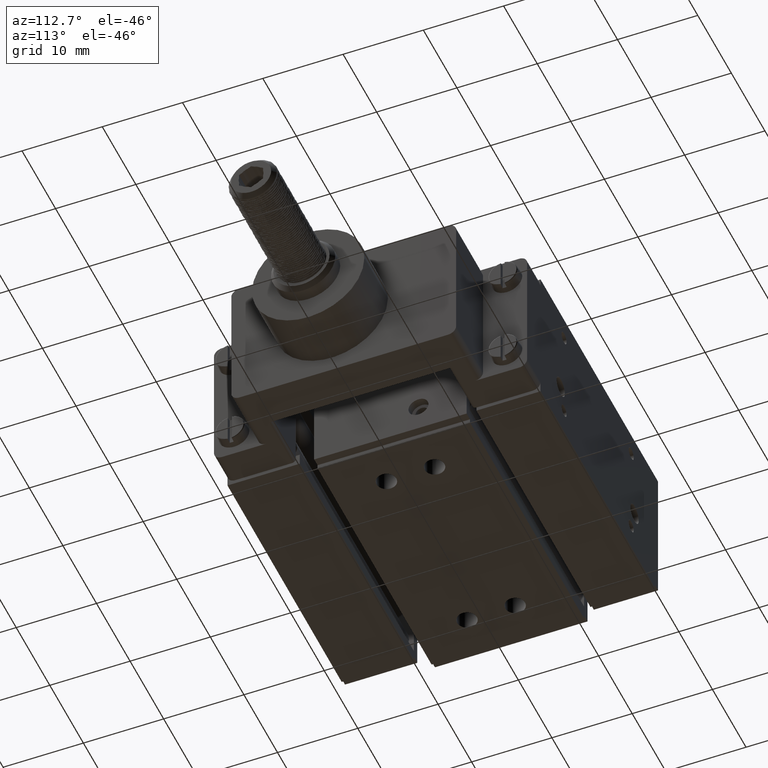
[diagram: clean part render]
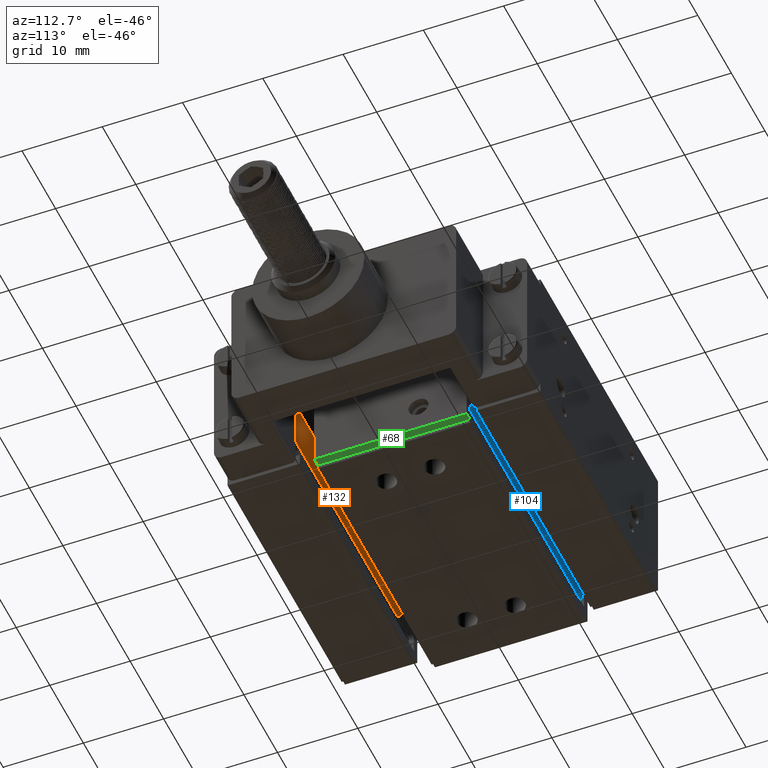
[diagram: same view with three faces highlighted in distinct colors, each labeled with its STEP entity id]
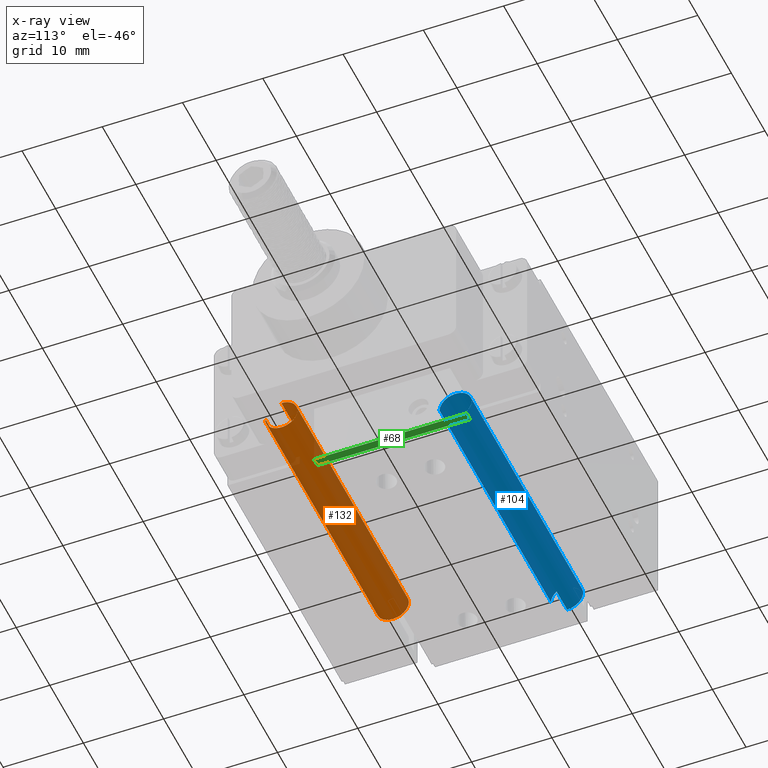
[diagram: x-ray of the same camera — body ghosted, the three highlighted faces saturated]
A machine part, auxiliary view with three faces highlighted in distinct colors.
The next image is the same camera in x-ray (body ghosted, the three faces saturated) — at least one of them is partly hidden behind the body in this view.
Their STEP definitions:

[orange] entity #132 — the highlighted cylindrical surface (edge-blend (fillet) strip) has radius 2 mm, axis along (-1, 0, -0).
#132=ADVANCED_FACE('',(#718),#8131,.T.);
#718=FACE_OUTER_BOUND('',#1243,.T.);
#1243=EDGE_LOOP('',(#2294,#2295,#2296,#2297,#2298,#2299));
#2294=ORIENTED_EDGE('',*,*,#4795,.T.);
#2295=ORIENTED_EDGE('',*,*,#5651,.T.);
#2296=ORIENTED_EDGE('',*,*,#4796,.T.);
#2297=ORIENTED_EDGE('',*,*,#4797,.T.);
#2298=ORIENTED_EDGE('',*,*,#4798,.F.);
#2299=ORIENTED_EDGE('',*,*,#5652,.T.);
#4795=EDGE_CURVE('',#7494,#7495,#6523,.T.);
#4796=EDGE_CURVE('',#7496,#7497,#6024,.T.);
#4797=EDGE_CURVE('',#7497,#7498,#6524,.T.);
#4798=EDGE_CURVE('',#7499,#7498,#6025,.T.);
#5651=EDGE_CURVE('',#7495,#7496,#6181,.T.);
#5652=EDGE_CURVE('',#7499,#7494,#6182,.T.);
#6024=(
BOUNDED_CURVE()
B_SPLINE_CURVE(2,(#28959,#28960,#28961,#28962,#28963),.UNSPECIFIED.,.F.,
 .F.)
B_SPLINE_CURVE_WITH_KNOTS((3,2,3),(0.,1.63639360838428,3.27278721676857),
 .UNSPECIFIED.)
CURVE()
GEOMETRIC_REPRESENTATION_ITEM()
RATIONAL_B_SPLINE_CURVE((1.,0.91747983534851,1.,0.91747983534851,1.))
REPRESENTATION_ITEM('')
);
#6025=(
BOUNDED_CURVE()
B_SPLINE_CURVE(2,(#28966,#28967,#28968,#28969,#28970),.UNSPECIFIED.,.F.,
 .F.)
B_SPLINE_CURVE_WITH_KNOTS((3,2,3),(0.,1.39093456712669,2.78186913425338),
 .UNSPECIFIED.)
CURVE()
GEOMETRIC_REPRESENTATION_ITEM()
RATIONAL_B_SPLINE_CURVE((1.,0.917479835348516,1.,0.917479835348516,1.))
REPRESENTATION_ITEM('')
);
#6181=(
BOUNDED_CURVE()
B_SPLINE_CURVE(2,(#42922,#42923,#42924,#42925,#42926,#42927,#42928),
 .UNSPECIFIED.,.F.,.F.)
B_SPLINE_CURVE_WITH_KNOTS((3,2,2,3),(0.,0.131194563178753,3.20718993517925,
6.28318530717976),.UNSPECIFIED.)
CURVE()
GEOMETRIC_REPRESENTATION_ITEM()
RATIONAL_B_SPLINE_CURVE((1.,0.999462172797637,1.,0.71860725037514,1.,0.71860725037514,
1.))
REPRESENTATION_ITEM('')
);
#6182=(
BOUNDED_CURVE()
B_SPLINE_CURVE(2,(#42929,#42930,#42931,#42932,#42933,#42934,#42935),
 .UNSPECIFIED.,.F.,.F.)
B_SPLINE_CURVE_WITH_KNOTS((3,2,2,3),(-10.6814150222053,-8.06681895600496,
-5.45222288980462,-5.32102832662584),.UNSPECIFIED.)
CURVE()
GEOMETRIC_REPRESENTATION_ITEM()
RATIONAL_B_SPLINE_CURVE((1.,0.718607250375119,1.,0.718607250375119,1.,0.999462172797637,
1.))
REPRESENTATION_ITEM('')
);
#6523=B_SPLINE_CURVE_WITH_KNOTS('',1,(#28957,#28958),.UNSPECIFIED.,.F.,
 .F.,(2,2),(0.,33.2),.UNSPECIFIED.);
#6524=B_SPLINE_CURVE_WITH_KNOTS('',1,(#28964,#28965),.UNSPECIFIED.,.F.,
 .F.,(2,2),(0.,33.2),.UNSPECIFIED.);
#7494=VERTEX_POINT('',#28360);
#7495=VERTEX_POINT('',#28361);
#7496=VERTEX_POINT('',#28362);
#7497=VERTEX_POINT('',#28363);
#7498=VERTEX_POINT('',#28364);
#7499=VERTEX_POINT('',#28365);
#8131=CYLINDRICAL_SURFACE('',#8687,2.00000000000006);
#8687=AXIS2_PLACEMENT_3D('',#12666,#9088,$);
#9088=DIRECTION('',(-1.,1.0594127514041E-15,-6.1903707387531E-15));
#12666=CARTESIAN_POINT('',(-17.0999991892432,-12.9999999944682,10.0000455395507));
#28360=CARTESIAN_POINT('',(-0.499999189243152,-14.9956985338815,10.1311460345298));
#28361=CARTESIAN_POINT('',(-33.6999991892432,-14.9956985338815,10.1311460345296));
#28362=CARTESIAN_POINT('',(-33.6999991892432,-11.0043014550549,9.86894504457162));
#28363=CARTESIAN_POINT('',(-33.6999991892432,-12.9999999944682,12.0000455395506));
#28364=CARTESIAN_POINT('',(-0.499999189243152,-12.9999999944683,12.0000455395507));
#28365=CARTESIAN_POINT('',(-0.499999189243145,-11.004301455055,9.8689450445718));
#28957=CARTESIAN_POINT('',(-0.499999189243152,-14.9956985338815,10.1311460345298));
#28958=CARTESIAN_POINT('',(-33.6999991892432,-14.9956985338815,10.1311460345296));
#28959=CARTESIAN_POINT('',(-33.6999991892432,-11.0043014550549,9.86894504457162));
#28960=CARTESIAN_POINT('',(-33.6999991892432,-10.9474615623952,10.7341995257196));
#28961=CARTESIAN_POINT('',(-33.6999991892432,-11.5401710678542,11.3671225326351));
#28962=CARTESIAN_POINT('',(-33.6999991892432,-12.1328805733131,12.0000455395506));
#28963=CARTESIAN_POINT('',(-33.6999991892432,-12.9999999944682,12.0000455395506));
#28964=CARTESIAN_POINT('',(-33.6999991892432,-12.9999999944682,12.0000455395506));
#28965=CARTESIAN_POINT('',(-0.499999189243152,-12.9999999944683,12.0000455395507));
#28966=CARTESIAN_POINT('',(-0.499999189243137,-11.004301455055,9.8689450445718));
#28967=CARTESIAN_POINT('',(-0.499999189243146,-10.9474615623954,10.7341995257198));
#28968=CARTESIAN_POINT('',(-0.499999189243152,-11.5401710678543,11.3671225326352));
#28969=CARTESIAN_POINT('',(-0.499999189243159,-12.1328805733132,12.0000455395507));
#28970=CARTESIAN_POINT('',(-0.499999189243159,-12.9999999944683,12.0000455395507));
#42922=CARTESIAN_POINT('',(-33.6999991892432,-14.9956985338815,10.1311460345296));
#42923=CARTESIAN_POINT('',(-33.6999991892432,-14.9999999944682,10.0656663533762));
#42924=CARTESIAN_POINT('',(-33.6999991892432,-14.9999999944683,10.0000455395506));
#42925=CARTESIAN_POINT('',(-33.6999991892432,-14.9999999944683,8.06459012014385));
#42926=CARTESIAN_POINT('',(-33.6999991892432,-13.0655855156351,8.00112119395534));
#42927=CARTESIAN_POINT('',(-33.6999991892432,-11.1311710368019,7.93765226776683));
#42928=CARTESIAN_POINT('',(-33.6999991892432,-11.0043014550549,9.86894504457161));
#42929=CARTESIAN_POINT('',(-0.499999189243145,-11.004301455055,9.86894504457179));
#42930=CARTESIAN_POINT('',(-0.499999189243131,-11.1311710368019,7.93765226776695));
#42931=CARTESIAN_POINT('',(-0.499999189243138,-13.0655855156351,8.00112119395546));
#42932=CARTESIAN_POINT('',(-0.499999189243144,-14.9999999944684,8.06459012014396));
#42933=CARTESIAN_POINT('',(-0.499999189243159,-14.9999999944683,10.0000455395508));
#42934=CARTESIAN_POINT('',(-0.499999189243153,-14.9999999944682,10.0656663533764));
#42935=CARTESIAN_POINT('',(-0.499999189243152,-14.9956985338815,10.1311460345298));

[blue] entity #104 — the highlighted cylindrical surface (edge-blend (fillet) strip) has radius 2 mm, axis along (-1, 0, 0).
#104=ADVANCED_FACE('',(#690),#8115,.T.);
#690=FACE_OUTER_BOUND('',#1213,.T.);
#1213=EDGE_LOOP('',(#2141,#2142,#2143,#2144,#2145,#2146,#2147,#2148));
#2141=ORIENTED_EDGE('',*,*,#4681,.F.);
#2142=ORIENTED_EDGE('',*,*,#4793,.F.);
#2143=ORIENTED_EDGE('',*,*,#4720,.F.);
#2144=ORIENTED_EDGE('',*,*,#4685,.F.);
#2145=ORIENTED_EDGE('',*,*,#4682,.F.);
#2146=ORIENTED_EDGE('',*,*,#4678,.F.);
#2147=ORIENTED_EDGE('',*,*,#4673,.F.);
#2148=ORIENTED_EDGE('',*,*,#4679,.F.);
#4673=EDGE_CURVE('',#7443,#7444,#5947,.T.);
#4678=EDGE_CURVE('',#7444,#7446,#5952,.T.);
#4679=EDGE_CURVE('',#7445,#7443,#5953,.T.);
#4681=EDGE_CURVE('',#7448,#7445,#6478,.T.);
#4682=EDGE_CURVE('',#7446,#7449,#6479,.T.);
#4685=EDGE_CURVE('',#7449,#7450,#5957,.T.);
#4720=EDGE_CURVE('',#7450,#7492,#5989,.T.);
#4793=EDGE_CURVE('',#7492,#7448,#6022,.T.);
#5947=(
BOUNDED_CURVE()
B_SPLINE_CURVE(2,(#11701,#11702,#11703,#11704,#11705),.UNSPECIFIED.,.F.,
 .F.)
B_SPLINE_CURVE_WITH_KNOTS((3,2,3),(0.,2.67035375555133,5.34070751110267),
 .UNSPECIFIED.)
CURVE()
GEOMETRIC_REPRESENTATION_ITEM()
RATIONAL_B_SPLINE_CURVE((1.,0.707106781186547,1.,0.707106781186547,1.))
REPRESENTATION_ITEM('')
);
#5952=(
BOUNDED_CURVE()
B_SPLINE_CURVE(2,(#11722,#11723,#11724),.UNSPECIFIED.,.F.,.F.)
B_SPLINE_CURVE_WITH_KNOTS((3,3),(5.34070751110267,6.26825068837708),
 .UNSPECIFIED.)
CURVE()
GEOMETRIC_REPRESENTATION_ITEM()
RATIONAL_B_SPLINE_CURVE((1.,0.963018434661799,1.))
REPRESENTATION_ITEM('')
);
#5953=(
BOUNDED_CURVE()
B_SPLINE_CURVE(2,(#11725,#11726,#11727),.UNSPECIFIED.,.F.,.F.)
B_SPLINE_CURVE_WITH_KNOTS((3,3),(8.93860444392839,10.6814150222053),
 .UNSPECIFIED.)
CURVE()
GEOMETRIC_REPRESENTATION_ITEM()
RATIONAL_B_SPLINE_CURVE((1.,0.871476542364423,1.))
REPRESENTATION_ITEM('')
);
#5957=(
BOUNDED_CURVE()
B_SPLINE_CURVE(2,(#11741,#11742,#11743),.UNSPECIFIED.,.F.,.F.)
B_SPLINE_CURVE_WITH_KNOTS((3,3),(9.75387184493087,10.6814150222053),
 .UNSPECIFIED.)
CURVE()
GEOMETRIC_REPRESENTATION_ITEM()
RATIONAL_B_SPLINE_CURVE((1.,0.96301843466174,1.))
REPRESENTATION_ITEM('')
);
#5989=(
BOUNDED_CURVE()
B_SPLINE_CURVE(2,(#12038,#12039,#12040,#12041,#12042),.UNSPECIFIED.,.F.,
 .F.)
B_SPLINE_CURVE_WITH_KNOTS((3,2,3),(0.,2.67035375555131,5.34070751110262),
 .UNSPECIFIED.)
CURVE()
GEOMETRIC_REPRESENTATION_ITEM()
RATIONAL_B_SPLINE_CURVE((1.,0.70710678118655,1.,0.70710678118655,1.))
REPRESENTATION_ITEM('')
);
#6022=(
BOUNDED_CURVE()
B_SPLINE_CURVE(2,(#12658,#12659,#12660),.UNSPECIFIED.,.F.,.F.)
B_SPLINE_CURVE_WITH_KNOTS((3,3),(5.34070751110262,7.08351808937956),
 .UNSPECIFIED.)
CURVE()
GEOMETRIC_REPRESENTATION_ITEM()
RATIONAL_B_SPLINE_CURVE((1.,0.871476542364478,1.))
REPRESENTATION_ITEM('')
);
#6478=B_SPLINE_CURVE_WITH_KNOTS('',1,(#11731,#11732),.UNSPECIFIED.,.F.,
 .F.,(2,2),(0.,33.2000000000001),.UNSPECIFIED.);
#6479=B_SPLINE_CURVE_WITH_KNOTS('',1,(#11733,#11734),.UNSPECIFIED.,.F.,
 .F.,(2,2),(0.,33.2),.UNSPECIFIED.);
#7443=VERTEX_POINT('',#10804);
#7444=VERTEX_POINT('',#10805);
#7445=VERTEX_POINT('',#10806);
#7446=VERTEX_POINT('',#10807);
#7448=VERTEX_POINT('',#10809);
#7449=VERTEX_POINT('',#10810);
#7450=VERTEX_POINT('',#10811);
#7492=VERTEX_POINT('',#10853);
#8115=CYLINDRICAL_SURFACE('',#8671,2.00000000000001);
#8671=AXIS2_PLACEMENT_3D('',#10381,#9072,$);
#9072=DIRECTION('',(-1.,3.76822190084103E-15,3.76822190084103E-15));
#10381=CARTESIAN_POINT('',(-18.0999991892398,8.29200000553199,4.00004553955112));
#10804=CARTESIAN_POINT('',(-34.6999991892398,7.25411454996597,5.70966356154484));
#10805=CARTESIAN_POINT('',(-34.6999991892398,9.32988546109793,2.29042751755776));
#10806=CARTESIAN_POINT('',(-34.6999991892398,6.29200000553183,4.00004553955117));
#10807=CARTESIAN_POINT('',(-34.6999991892398,8.29200000553203,2.00004553955096));
#10809=CARTESIAN_POINT('',(-1.49999918923976,6.29200000553173,4.00004553955105));
#10810=CARTESIAN_POINT('',(-1.49999918923985,8.29200000553193,2.00004553955087));
#10811=CARTESIAN_POINT('',(-1.49999918923987,9.32988546109796,2.29042751755746));
#10853=CARTESIAN_POINT('',(-1.49999918923974,7.25411454996603,5.70966356154451));
#11701=CARTESIAN_POINT('',(-34.6999991892398,7.25411454996597,5.70966356154484));
#11702=CARTESIAN_POINT('',(-34.6999991892398,8.96373257195951,6.74754901711083));
#11703=CARTESIAN_POINT('',(-34.6999991892398,10.0016180275255,5.03793099511728));
#11704=CARTESIAN_POINT('',(-34.6999991892398,11.0395034830915,3.32831297312374));
#11705=CARTESIAN_POINT('',(-34.6999991892398,9.32988546109793,2.29042751755777));
#11722=CARTESIAN_POINT('',(-34.6999991892398,9.32988546109793,2.29042751755777));
#11723=CARTESIAN_POINT('',(-34.6999991892398,8.85156460189345,2.0000455395512));
#11724=CARTESIAN_POINT('',(-34.6999991892398,8.29200000553203,2.00004553955097));
#11725=CARTESIAN_POINT('',(-34.6999991892398,6.29200000553183,4.00004553955117));
#11726=CARTESIAN_POINT('',(-34.6999991892398,6.29200000553175,5.12557712854599));
#11727=CARTESIAN_POINT('',(-34.6999991892398,7.25411454996597,5.70966356154484));
#11731=CARTESIAN_POINT('',(-1.49999918923976,6.29200000553173,4.00004553955105));
#11732=CARTESIAN_POINT('',(-34.6999991892398,6.29200000553183,4.00004553955117));
#11733=CARTESIAN_POINT('',(-34.6999991892398,8.29200000553203,2.00004553955096));
#11734=CARTESIAN_POINT('',(-1.49999918923985,8.29200000553193,2.00004553955087));
#11741=CARTESIAN_POINT('',(-1.49999918923985,8.29200000553193,2.00004553955087));
#11742=CARTESIAN_POINT('',(-1.49999918923987,8.85156460189342,2.00004553955086));
#11743=CARTESIAN_POINT('',(-1.49999918923987,9.32988546109796,2.29042751755746));
#12038=CARTESIAN_POINT('',(-1.49999918923987,9.32988546109796,2.29042751755746));
#12039=CARTESIAN_POINT('',(-1.49999918923986,11.0395034830915,3.32831297312343));
#12040=CARTESIAN_POINT('',(-1.4999991892398,10.0016180275255,5.03793099511695));
#12041=CARTESIAN_POINT('',(-1.49999918923974,8.96373257195955,6.74754901711045));
#12042=CARTESIAN_POINT('',(-1.49999918923974,7.25411454996603,5.70966356154451));
#12658=CARTESIAN_POINT('',(-1.49999918923974,7.25411454996603,5.70966356154451));
#12659=CARTESIAN_POINT('',(-1.49999918923974,6.29200000553192,5.12557712854574));
#12660=CARTESIAN_POINT('',(-1.49999918923975,6.29200000553173,4.00004553955106));

[green] entity #68 — the highlighted planar face has unit normal (0, 0, -1).
#68=ADVANCED_FACE('',(#654),#8479,.T.);
#654=FACE_OUTER_BOUND('',#1170,.T.);
#1170=EDGE_LOOP('',(#1958,#1959,#1960,#1961));
#1958=ORIENTED_EDGE('',*,*,#4623,.F.);
#1959=ORIENTED_EDGE('',*,*,#4516,.F.);
#1960=ORIENTED_EDGE('',*,*,#4622,.F.);
#1961=ORIENTED_EDGE('',*,*,#4502,.F.);
#4502=EDGE_CURVE('',#7306,#7307,#6358,.T.);
#4516=EDGE_CURVE('',#7320,#7321,#6372,.T.);
#4622=EDGE_CURVE('',#7307,#7320,#6464,.T.);
#4623=EDGE_CURVE('',#7321,#7306,#6465,.T.);
#6358=B_SPLINE_CURVE_WITH_KNOTS('',1,(#10867,#10868),.UNSPECIFIED.,.F.,
 .F.,(2,2),(0.,1.),.UNSPECIFIED.);
#6372=B_SPLINE_CURVE_WITH_KNOTS('',1,(#10895,#10896),.UNSPECIFIED.,.F.,
 .F.,(2,2),(0.,1.),.UNSPECIFIED.);
#6464=B_SPLINE_CURVE_WITH_KNOTS('',1,(#11534,#11535),.UNSPECIFIED.,.F.,
 .F.,(2,2),(0.,19.),.UNSPECIFIED.);
#6465=B_SPLINE_CURVE_WITH_KNOTS('',1,(#11536,#11537),.UNSPECIFIED.,.F.,
 .F.,(2,2),(0.,19.),.UNSPECIFIED.);
#7306=VERTEX_POINT('',#10667);
#7307=VERTEX_POINT('',#10668);
#7320=VERTEX_POINT('',#10681);
#7321=VERTEX_POINT('',#10682);
#8479=PLANE('',#8647);
#8647=AXIS2_PLACEMENT_3D('',#9529,#9048,$);
#9048=DIRECTION('',(0.,0.,-1.));
#9529=CARTESIAN_POINT('',(-1.21999918924165,12.3120000055318,0.500045539551262));
#10667=CARTESIAN_POINT('',(8.10758354221268E-7,10.2920000055318,0.500045539551199));
#10668=CARTESIAN_POINT('',(-0.999999189241646,10.2920000055318,0.500045539551219));
#10681=CARTESIAN_POINT('',(-0.999999189241646,-8.70799999446817,0.500045539550851));
#10682=CARTESIAN_POINT('',(8.10758354221268E-7,-8.70799999446817,0.50004553955083));
#10867=CARTESIAN_POINT('',(8.10758354221268E-7,10.2920000055318,0.500045539551199));
#10868=CARTESIAN_POINT('',(-0.999999189241646,10.2920000055318,0.500045539551219));
#10895=CARTESIAN_POINT('',(-0.999999189241646,-8.70799999446817,0.500045539550851));
#10896=CARTESIAN_POINT('',(8.10758354221268E-7,-8.70799999446817,0.50004553955083));
#11534=CARTESIAN_POINT('',(-0.999999189241646,10.2920000055318,0.500045539551219));
#11535=CARTESIAN_POINT('',(-0.999999189241646,-8.70799999446817,0.500045539550851));
#11536=CARTESIAN_POINT('',(8.10758354221268E-7,-8.70799999446817,0.50004553955083));
#11537=CARTESIAN_POINT('',(8.10758354221268E-7,10.2920000055318,0.500045539551199));